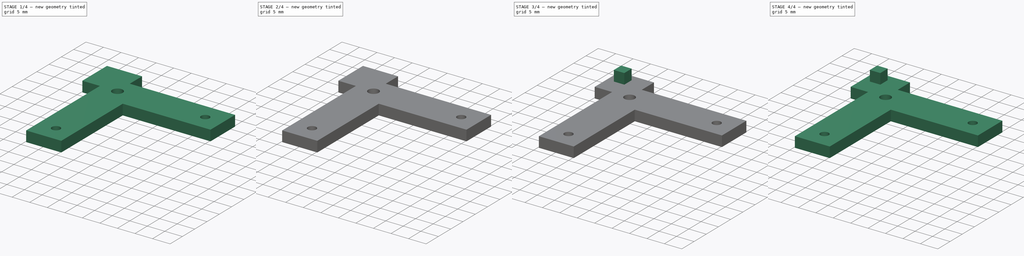
[diagram: build sequence overview — one tinted view per stage of 4, left to right]
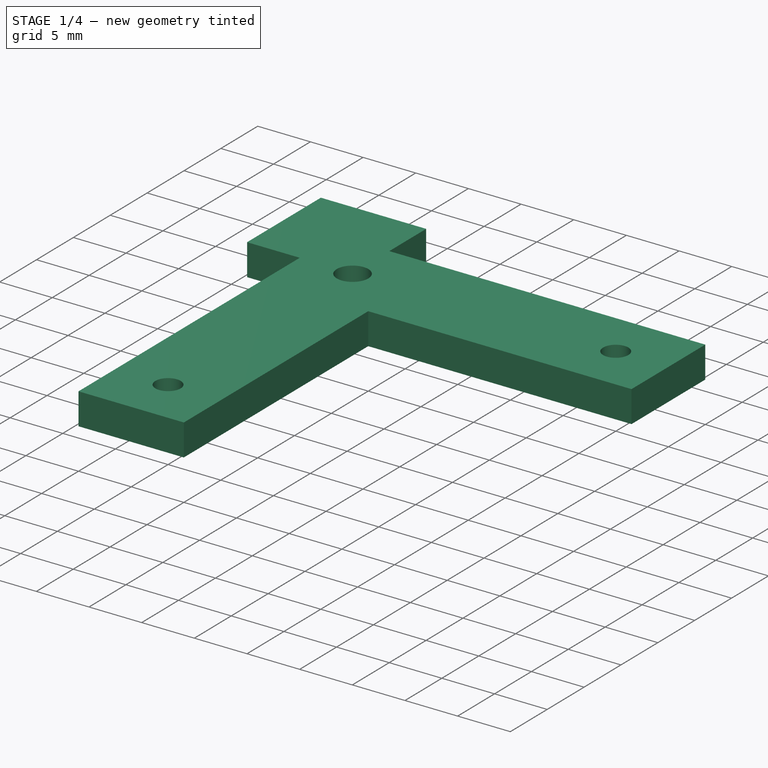
[diagram: stage 1 of 4 — iso view after this stage's code; geometry added in this stage tinted green]
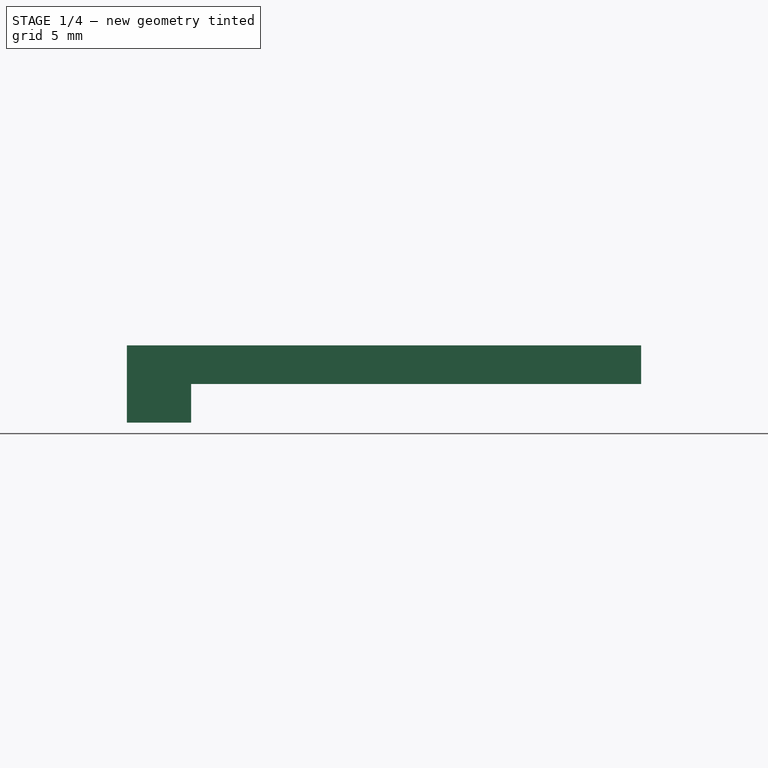
[diagram: stage 1 of 4 — front view after this stage's code; geometry added in this stage tinted green]
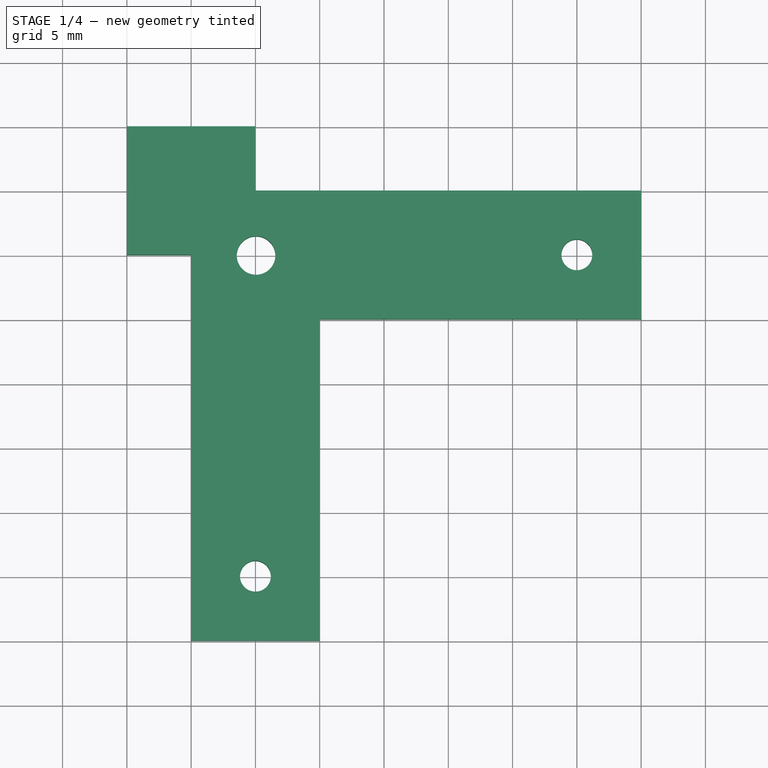
[diagram: stage 1 of 4 — top view after this stage's code; geometry added in this stage tinted green]
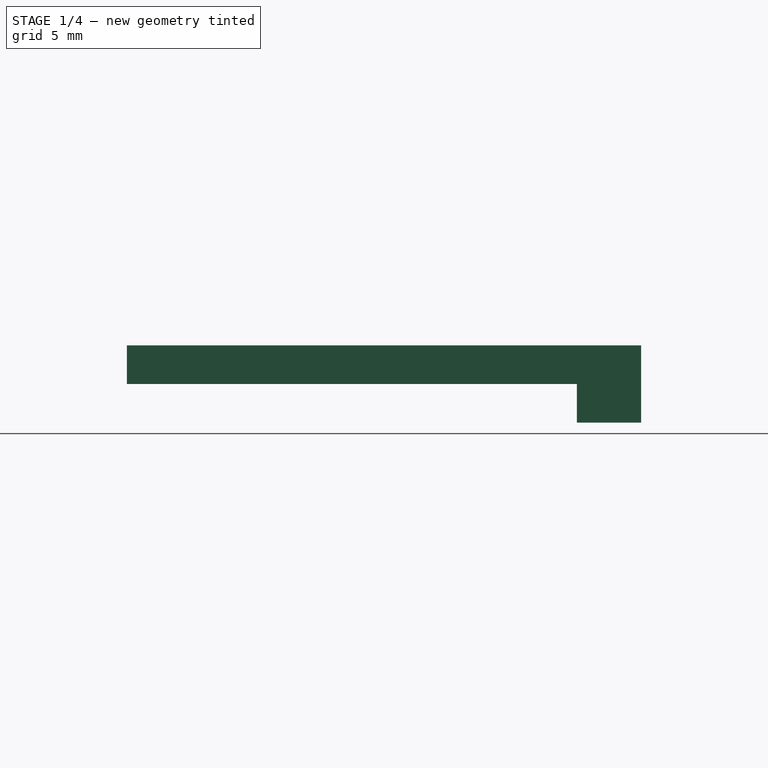
[diagram: stage 1 of 4 — right view after this stage's code; geometry added in this stage tinted green]
FCSTD DOCUMENT  (FreeCAD 0.18R4 (GitTag))
Label: болансир опорных катков
License: All rights reserved
LicenseURL: http://en.wikipedia.org/wiki/All_rights_reserved
objects: Sketcher::SketchObject×3, Part::Box×3, Part::MultiFuse×3, PartDesign::Pad×3, PartDesign::Body×2, App::MeasureDistance×1
note: 17 computed .brp shape members not serialized (recipe doc carries the construction recipe); baked Part::Feature solids carry a one-line shape summary decoded from their .brp

FEATURE [Sketcher::SketchObject] Sketch001
  MapMode = 5
  Support = -> [XY_Plane001]
  sketch-geometry (23):
    g0: LineSegment StartX=25 StartY=10 StartZ=0 EndX=-5 EndY=10 EndZ=0
    g1: LineSegment StartX=-5 StartY=10 StartZ=0 EndX=-5 EndY=15 EndZ=0
    g2: LineSegment StartX=-5 StartY=15 StartZ=0 EndX=-15 EndY=15 EndZ=0
    g3: LineSegment StartX=-15 StartY=15 StartZ=0 EndX=-15 EndY=5 EndZ=0
    g4: LineSegment StartX=-15 StartY=5 StartZ=0 EndX=-10 EndY=5 EndZ=0
    g5: LineSegment StartX=-10 StartY=5 StartZ=0 EndX=-10 EndY=-25 EndZ=0
    g6: LineSegment StartX=-10 StartY=-25 StartZ=0 EndX=0 EndY=-25 EndZ=0
    g7: LineSegment StartX=0 StartY=-25 StartZ=0 EndX=0 EndY=0 EndZ=0
    g8: LineSegment StartX=0 StartY=0 StartZ=0 EndX=25 EndY=0 EndZ=0
    g9: LineSegment StartX=25 StartY=0 StartZ=0 EndX=25 EndY=10 EndZ=0
    g10: LineSegment [constr] StartX=0 StartY=0 StartZ=0 EndX=-15 EndY=15 EndZ=0
    g11: LineSegment [constr] StartX=0 StartY=0 StartZ=0 EndX=-4.94975 EndY=4.94975 EndZ=0
    g12: Circle CenterX=-4.94975 CenterY=4.94975 CenterZ=0 NormalX=0 NormalY=0 NormalZ=1 AngleXU=0 Radius=1.5
    g13: LineSegment [constr] StartX=20 StartY=5 StartZ=0 EndX=25 EndY=5 EndZ=0
    g14: LineSegment [constr] StartX=25 StartY=5 StartZ=0 EndX=25 EndY=0 EndZ=0
    g15: LineSegment [constr] StartX=25 StartY=0 StartZ=0 EndX=20 EndY=0 EndZ=0
    g16: LineSegment [constr] StartX=20 StartY=0 StartZ=0 EndX=20 EndY=5 EndZ=0
    g17: LineSegment [constr] StartX=-5 StartY=-25 StartZ=0 EndX=-10 EndY=-25 EndZ=0
    g18: LineSegment [constr] StartX=-10 StartY=-25 StartZ=0 EndX=-10 EndY=-20 EndZ=0
    g19: LineSegment [constr] StartX=-10 StartY=-20 StartZ=0 EndX=-5 EndY=-20 EndZ=0
    g20: LineSegment [constr] StartX=-5 StartY=-20 StartZ=0 EndX=-5 EndY=-25 EndZ=0
    g21: Circle CenterX=20 CenterY=5 CenterZ=0 NormalX=0 NormalY=0 NormalZ=1 AngleXU=0 Radius=1.2
    g22: Circle CenterX=-5 CenterY=-20 CenterZ=0 NormalX=0 NormalY=0 NormalZ=1 AngleXU=0 Radius=1.2
  constraints (62):
    c: Coincident(g0,g1)
    c: Coincident(g1,g2)
    c: Coincident(g2,g3)
    c: Coincident(g3,g4)
    c: Coincident(g4,g5)
    c: Coincident(g5,g6)
    c: Coincident(g6,g7)
    c: Coincident(g7,g8)
    c: Coincident(g8,g9)
    c: Coincident(g0,g9)
    c: Parallel(g5,g7)
    c: Parallel(g7,g3)
    c: Parallel(g3,g9)
    c: Parallel(g9,g1)
    c: Parallel(g4,g2)
    c: Parallel(g2,g0)
    c: Parallel(g0,g8)
    c: Parallel(g8,g6)
    c: Perpendicular(g9,g8)
    c: Distance(g9) = 10
    c: Distance(g6) = 10
    c: Distance(g2) = 10
    c: Distance(g3) = 10
    c: Distance(g4) = 5
    c: Distance(g1) = 5
    c: Distance(g5) = 30
    c: Distance(g0) = 30
    c: Coincident(g7,g-1)
    c: Parallel(g8,g-1)
    c: Coincident(g2,g10)
    c: Coincident(g7,g10)
    c: Coincident(g11,g7)
    c: Distance(g11) = 7
    c: PointOnObject(g11,g10)
    c: Radius(g12) = 1.5
    c: Coincident(g12,g11)
    c: Coincident(g13,g14)
    c: Coincident(g14,g15)
    c: Coincident(g15,g16)
    c: Coincident(g16,g13)
    c: Horizontal(g13)
    c: Horizontal(g15)
    c: Vertical(g14)
    c: Vertical(g16)
    c: Coincident(g17,g18)
    c: Coincident(g18,g19)
    c: Coincident(g19,g20)
    c: Coincident(g20,g17)
    c: Horizontal(g17)
    c: Horizontal(g19)
    c: Vertical(g18)
    c: Vertical(g20)
    c: Coincident(g8,g14)
    c: Coincident(g5,g17)
    c: Distance(g19) = 5
    c: Distance(g20) = 5
    c: Distance(g13) = 5
    c: Distance(g16) = 5
    c: Radius(g21) = 1.2
    c: Radius(g22) = 1.2
    c: Coincident(g21,g13)
    c: Coincident(g22,g19)
FEATURE [PartDesign::Pad] Pad001
  Length = 3
  Length2 = 100
  Profile = -> Sketch001
  Type = 0
FEATURE [Sketcher::SketchObject] Sketch002
  ExternalGeometry = -> [Pad001]
  MapMode = 5
  Placement = pos=(0,0,0) rot=(1,0,0;3.14159rad)
  Support = -> [Pad001]
  sketch-geometry (4):
    g0: LineSegment StartX=-15 StartY=-15 StartZ=0 EndX=-10 EndY=-15 EndZ=0
    g1: LineSegment StartX=-10 StartY=-15 StartZ=0 EndX=-10 EndY=-10 EndZ=0
    g2: LineSegment StartX=-10 StartY=-10 StartZ=0 EndX=-15 EndY=-10 EndZ=0
    g3: LineSegment StartX=-15 StartY=-10 StartZ=0 EndX=-15 EndY=-15 EndZ=0
  constraints (11):
    c: Coincident(g0,g1)
    c: Coincident(g1,g2)
    c: Coincident(g2,g3)
    c: Coincident(g3,g0)
    c: Horizontal(g0)
    c: Horizontal(g2)
    c: Vertical(g1)
    c: Vertical(g3)
    c: Coincident(g0,g-5)
    c: Distance(g1) = 5
    c: Distance(g2) = 5
FEATURE [PartDesign::Pad] Pad002
  BaseFeature = -> Pad001
  Length = 3
  Length2 = 100
  Profile = -> Sketch002
  Type = 0
FEATURE [PartDesign::Body] Body001
  Group = -> [Sketch001,Pad001,Sketch002,Pad002]
  Origin = -> Origin001
  Tip = -> Pad002
FEATURE [App::MeasureDistance] Distance  label="Distance: 25,00 mm"
  Distance = 25
  P1 = (0,0,3)
  P2 = (0,-25,3)
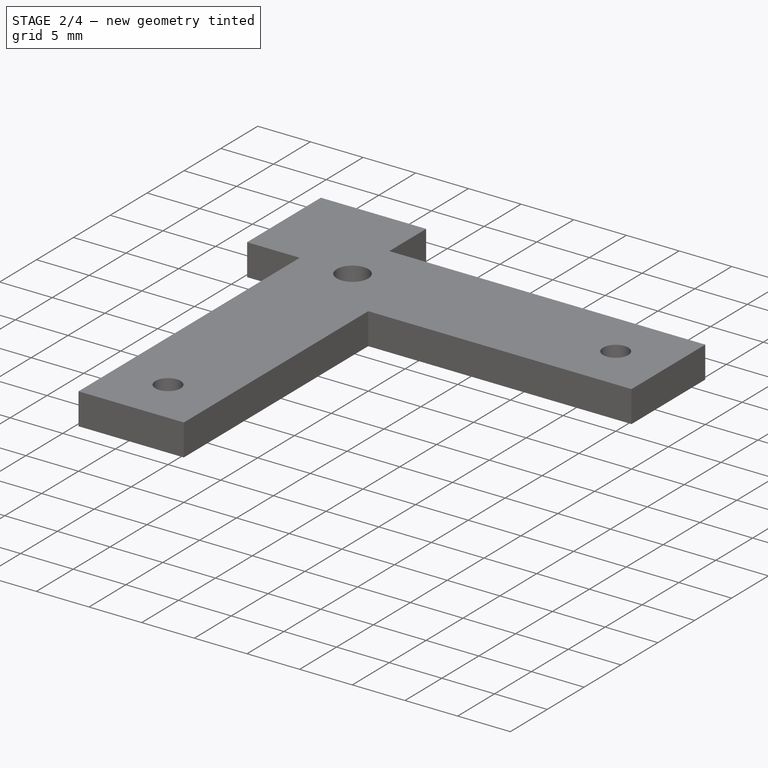
[diagram: stage 2 of 4 — iso view after this stage's code; geometry added in this stage tinted green]
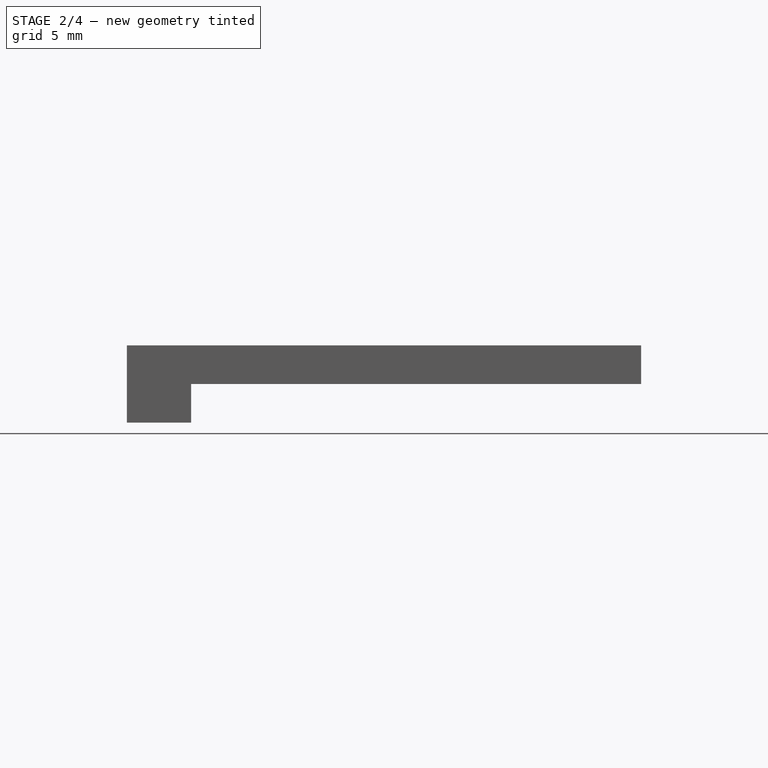
[diagram: stage 2 of 4 — front view after this stage's code; geometry added in this stage tinted green]
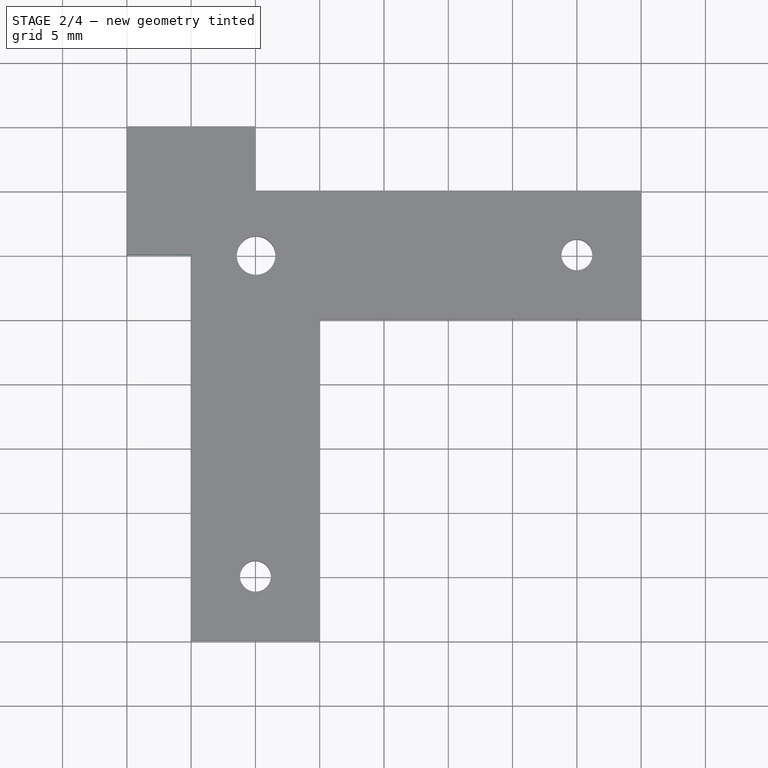
[diagram: stage 2 of 4 — top view after this stage's code; geometry added in this stage tinted green]
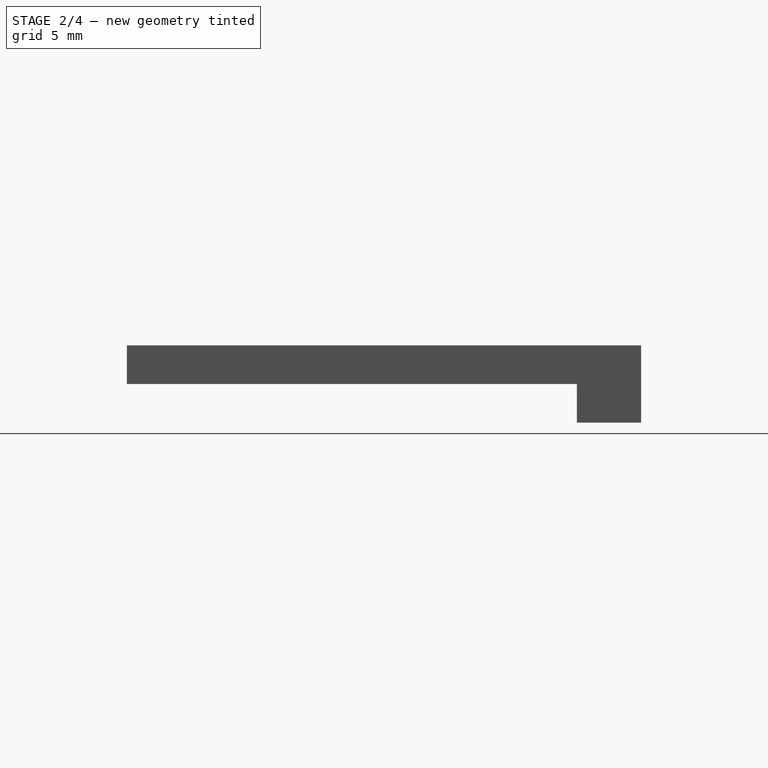
[diagram: stage 2 of 4 — right view after this stage's code; geometry added in this stage tinted green]
FEATURE [PartDesign::Pad] Pad
  Length = 3
  Length2 = 100
  Profile = -> Sketch
  Type = 0
FEATURE [Part::Box] Box002  label="Куб002"
  AttacherType = Attacher::AttachEngine3D
  Height = 3
  Length = 8
  Placement = pos=(-8,5,0) rot=(0,0,1;1.5708rad)
  Width = 5
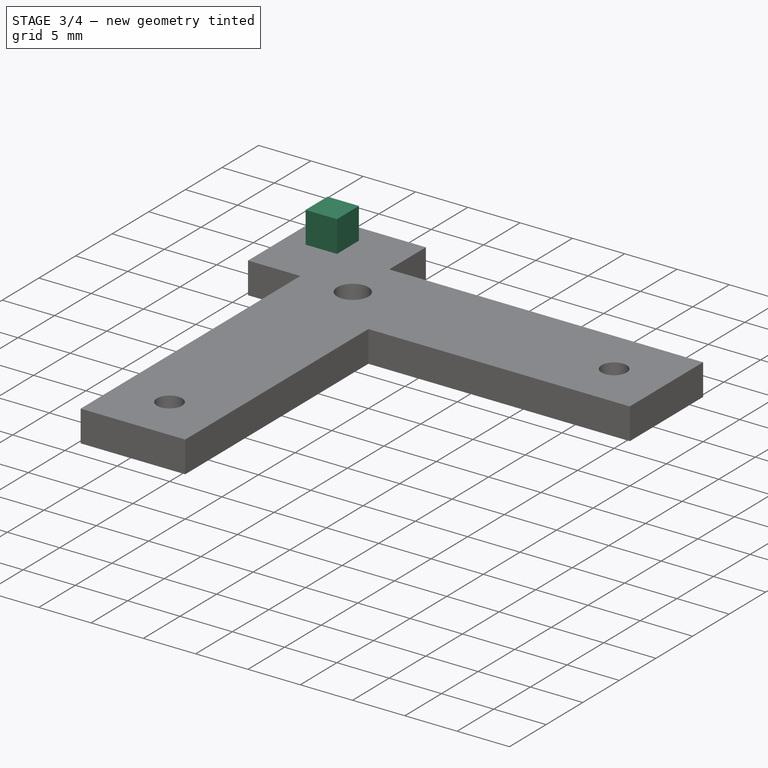
[diagram: stage 3 of 4 — iso view after this stage's code; geometry added in this stage tinted green]
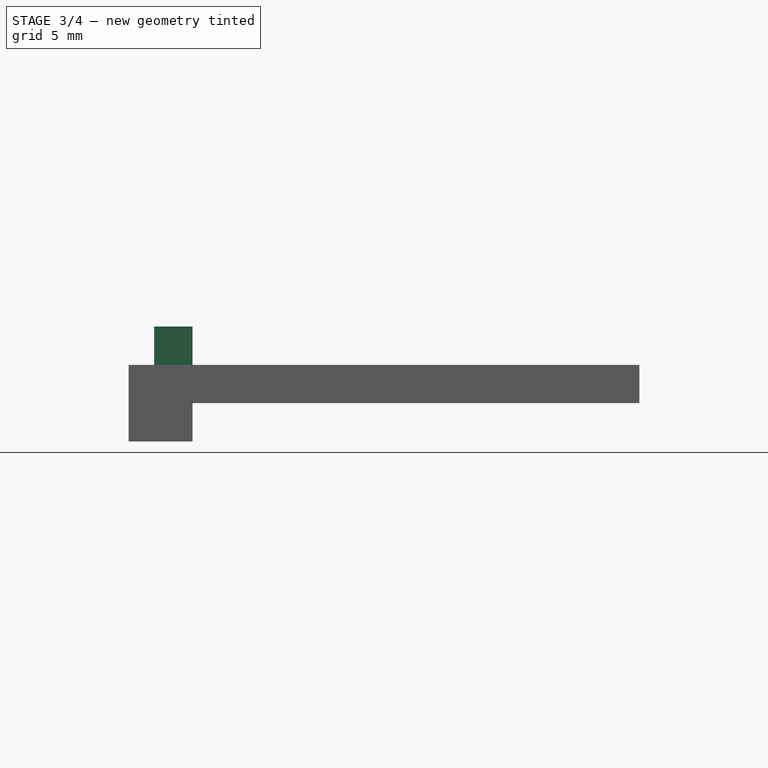
[diagram: stage 3 of 4 — front view after this stage's code; geometry added in this stage tinted green]
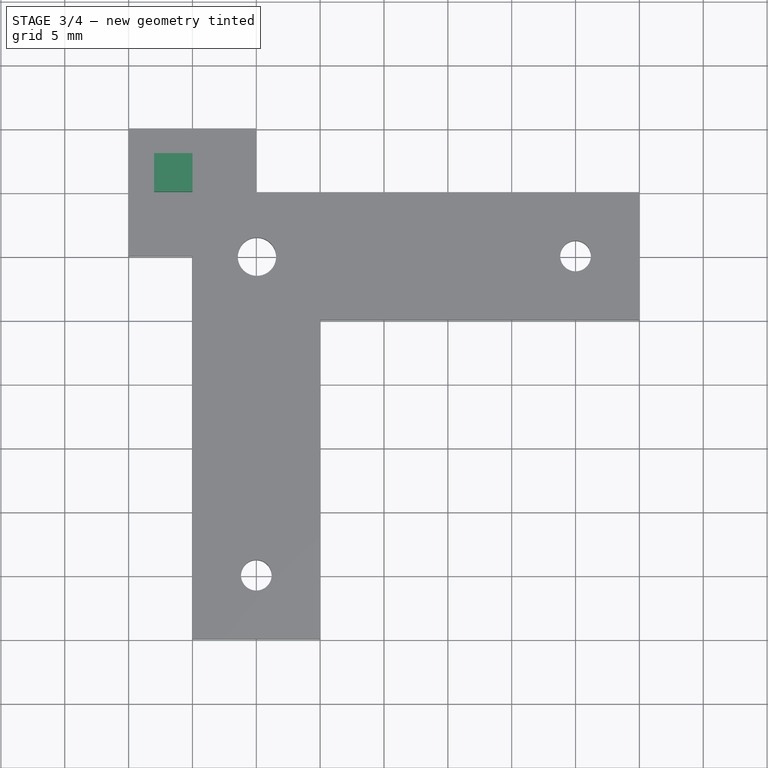
[diagram: stage 3 of 4 — top view after this stage's code; geometry added in this stage tinted green]
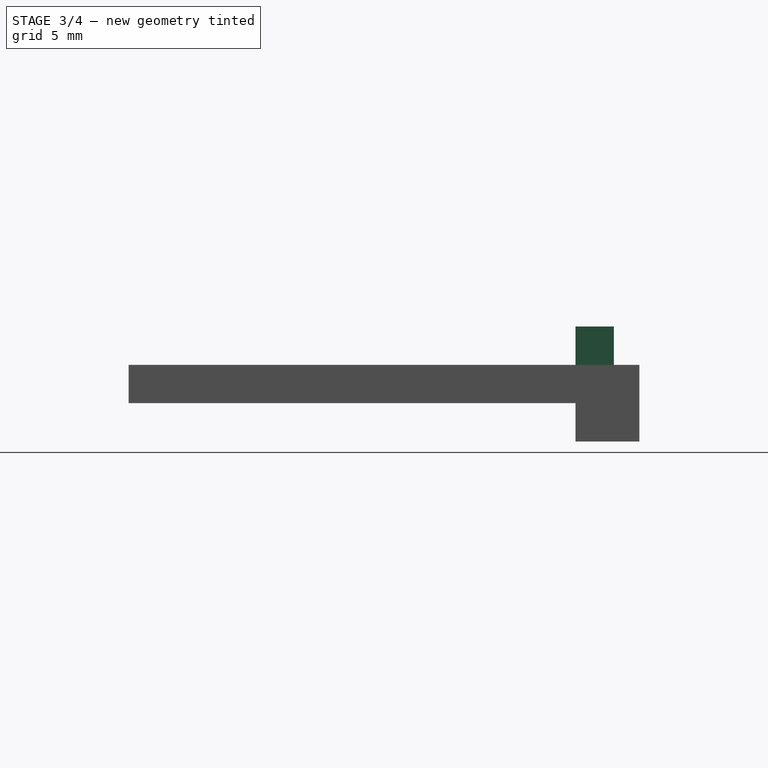
[diagram: stage 3 of 4 — right view after this stage's code; geometry added in this stage tinted green]
FEATURE [Sketcher::SketchObject] Sketch
  MapMode = 5
  Support = -> [XY_Plane]
  sketch-geometry (21):
    g0: LineSegment StartX=0 StartY=0 StartZ=0 EndX=0 EndY=-25 EndZ=0
    g1: LineSegment StartX=0 StartY=-25 StartZ=0 EndX=-10 EndY=-25 EndZ=0
    g2: LineSegment StartX=-10 StartY=-25 StartZ=0 EndX=-10 EndY=10 EndZ=0
    g3: LineSegment StartX=-10 StartY=10 StartZ=0 EndX=25 EndY=10 EndZ=0
    g4: LineSegment StartX=25 StartY=10 StartZ=0 EndX=25 EndY=0 EndZ=0
    g5: LineSegment StartX=25 StartY=0 StartZ=0 EndX=0 EndY=0 EndZ=0
    g6: Circle CenterX=-5 CenterY=5 CenterZ=0 NormalX=0 NormalY=0 NormalZ=1 AngleXU=0 Radius=3
    g7: LineSegment [constr] StartX=0 StartY=0 StartZ=0 EndX=-5 EndY=0 EndZ=0
    g8: LineSegment [constr] StartX=0 StartY=5 StartZ=0 EndX=0 EndY=0 EndZ=0
    g9: LineSegment [constr] StartX=-5 StartY=5 StartZ=0 EndX=0 EndY=5 EndZ=0
    g10: LineSegment [constr] StartX=-5 StartY=5 StartZ=0 EndX=-5 EndY=0 EndZ=0
    g11: LineSegment [constr] StartX=25 StartY=0 StartZ=0 EndX=20 EndY=0 EndZ=0
    g12: LineSegment [constr] StartX=20 StartY=0 StartZ=0 EndX=20 EndY=5 EndZ=0
    g13: LineSegment [constr] StartX=20 StartY=5 StartZ=0 EndX=25 EndY=5 EndZ=0
    g14: LineSegment [constr] StartX=25 StartY=5 StartZ=0 EndX=25 EndY=0 EndZ=0
    g15: LineSegment [constr] StartX=-10 StartY=-25 StartZ=0 EndX=-5 EndY=-25 EndZ=0
    g16: LineSegment [constr] StartX=-5 StartY=-25 StartZ=0 EndX=-5 EndY=-20 EndZ=0
    g17: LineSegment [constr] StartX=-5 StartY=-20 StartZ=0 EndX=-10 EndY=-20 EndZ=0
    g18: LineSegment [constr] StartX=-10 StartY=-20 StartZ=0 EndX=-10 EndY=-25 EndZ=0
    g19: Circle CenterX=20 CenterY=5 CenterZ=0 NormalX=0 NormalY=0 NormalZ=1 AngleXU=0 Radius=2.2
    g20: Circle CenterX=-5 CenterY=-20 CenterZ=0 NormalX=0 NormalY=0 NormalZ=1 AngleXU=0 Radius=2.2
  constraints (56):
    c: Coincident(g0,g1)
    c: Coincident(g1,g2)
    c: Horizontal(g1)
    c: Vertical(g0)
    c: Vertical(g2)
    c: Coincident(g3,g4)
    c: Coincident(g4,g5)
    c: Horizontal(g3)
    c: Horizontal(g5)
    c: Vertical(g4)
    c: Coincident(g0,g5)
    c: Coincident(g2,g3)
    c: Distance(g1) = 10
    c: Distance(g4) = 10
    c: Distance(g0) = 25
    c: Distance(g5) = 25
    c: Coincident(g0,g-1)
    c: Coincident(g0,g7)
    c: Coincident(g0,g8)
    c: Perpendicular(g5,g8)
    c: Distance(g8) = 5
    c: Parallel(g7,g5)
    c: Distance(g7) = 5
    c: Coincident(g6,g9)
    c: Coincident(g6,g10)
    c: Coincident(g8,g9)
    c: Coincident(g7,g10)
    c: Equal(g9,g7)
    c: Equal(g8,g10)
    c: Radius(g6) = 3
    c: Coincident(g11,g12)
    c: Coincident(g12,g13)
    c: Coincident(g13,g14)
    c: Coincident(g14,g11)
    c: Horizontal(g11)
    c: Horizontal(g13)
    c: Vertical(g12)
    c: Vertical(g14)
    c: Coincident(g4,g11)
    c: Coincident(g15,g16)
    c: Coincident(g16,g17)
    c: Coincident(g17,g18)
    c: Coincident(g18,g15)
    c: Horizontal(g15)
    c: Horizontal(g17)
    c: Vertical(g16)
    c: Vertical(g18)
    c: Coincident(g1,g15)
    c: Distance(g17) = 5
    c: Distance(g16) = 5
    c: Distance(g12) = 5
    c: Distance(g13) = 5
    c: Coincident(g12,g19)
    c: Radius(g19) = 2.2
    c: Coincident(g16,g20)
    c: Radius(g20) = 2.2
FEATURE [Part::Box] Box  label="Куб"
  AttacherType = Attacher::AttachEngine3D
  Height = 6
  Length = 3
  Placement = pos=(-13,10,0) rot=(0,0,1;0rad)
  Width = 3
FEATURE [Part::Box] Box001  label="Куб001"
  AttacherType = Attacher::AttachEngine3D
  Height = 3
  Length = 8
  Placement = pos=(-13,8,0) rot=(0,0,1;0rad)
  Width = 5
FEATURE [Part::MultiFuse] Fusion
  Shapes = -> [Box001,Box]
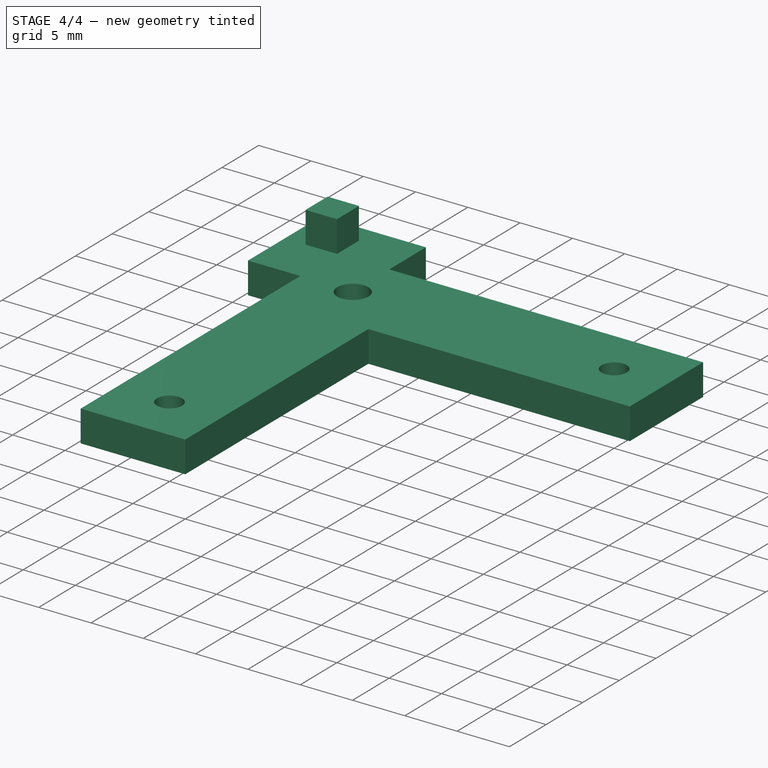
[diagram: stage 4 of 4 — iso view after this stage's code; geometry added in this stage tinted green]
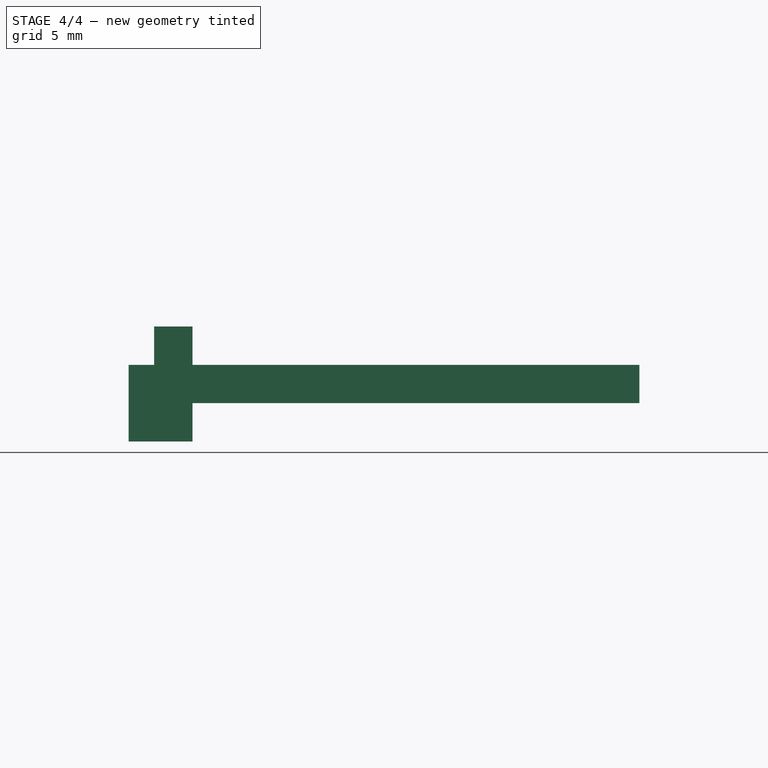
[diagram: stage 4 of 4 — front view after this stage's code; geometry added in this stage tinted green]
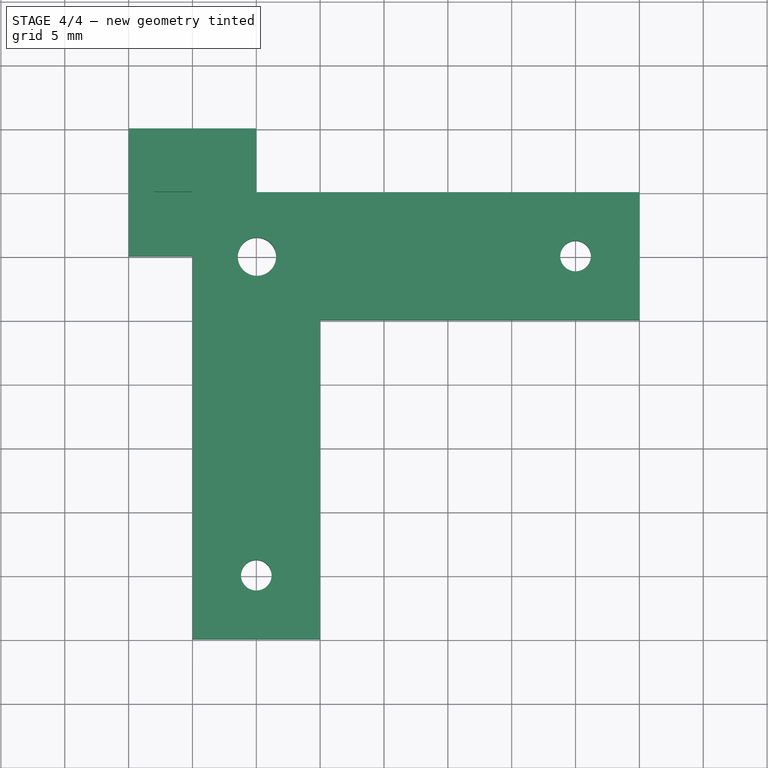
[diagram: stage 4 of 4 — top view after this stage's code; geometry added in this stage tinted green]
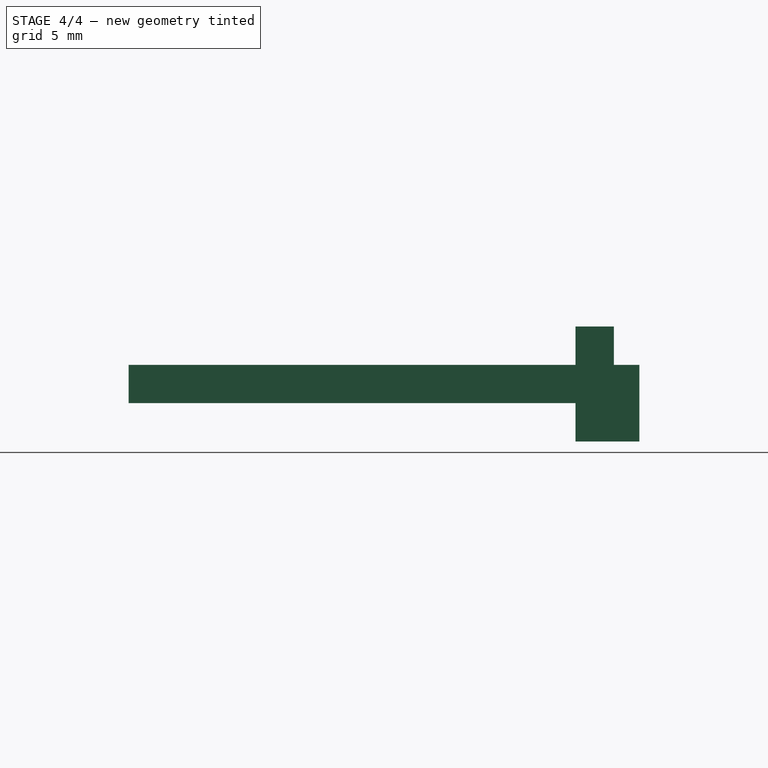
[diagram: stage 4 of 4 — right view after this stage's code; geometry added in this stage tinted green]
FEATURE [PartDesign::Body] Body
  Group = -> [Sketch,Pad]
  Origin = -> Origin
  Tip = -> Pad
FEATURE [Part::MultiFuse] Fusion001
  Shapes = -> [Fusion,Body]
FEATURE [Part::MultiFuse] Fusion002
  Shapes = -> [Fusion001,Box002]
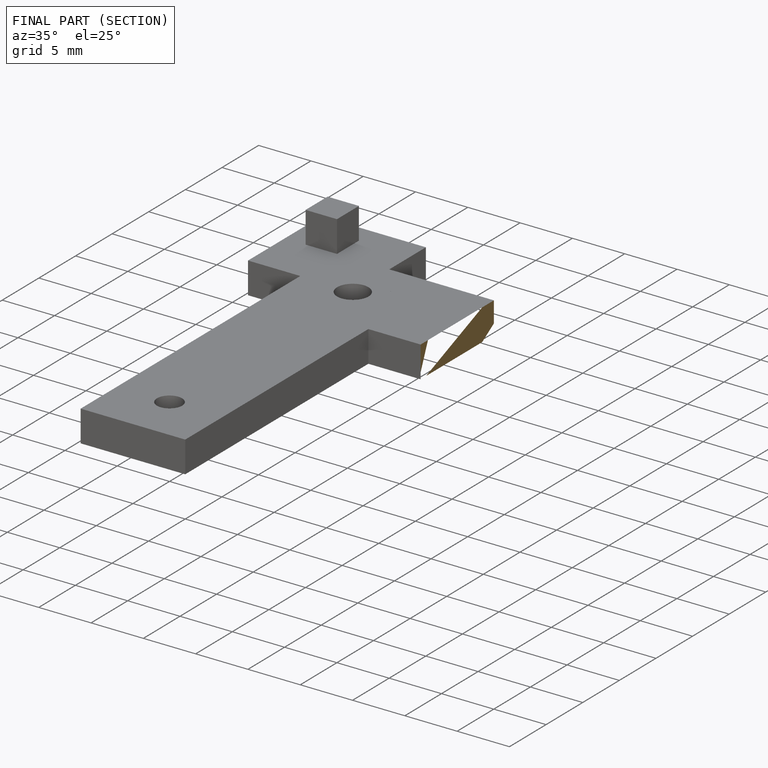
[diagram: finished part — half-section view (interior)]
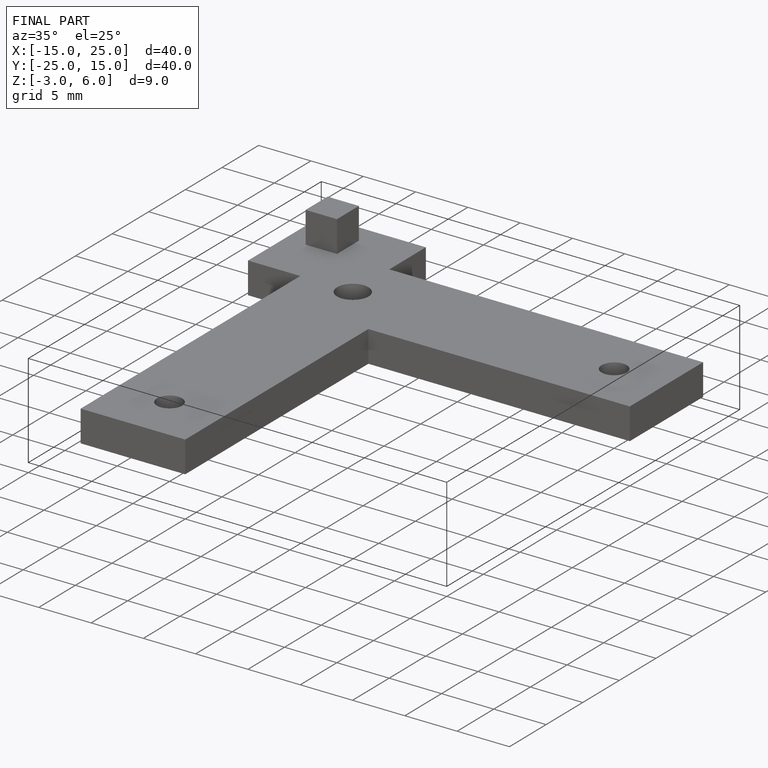
[diagram: finished part — iso view with bounding-box wireframe]
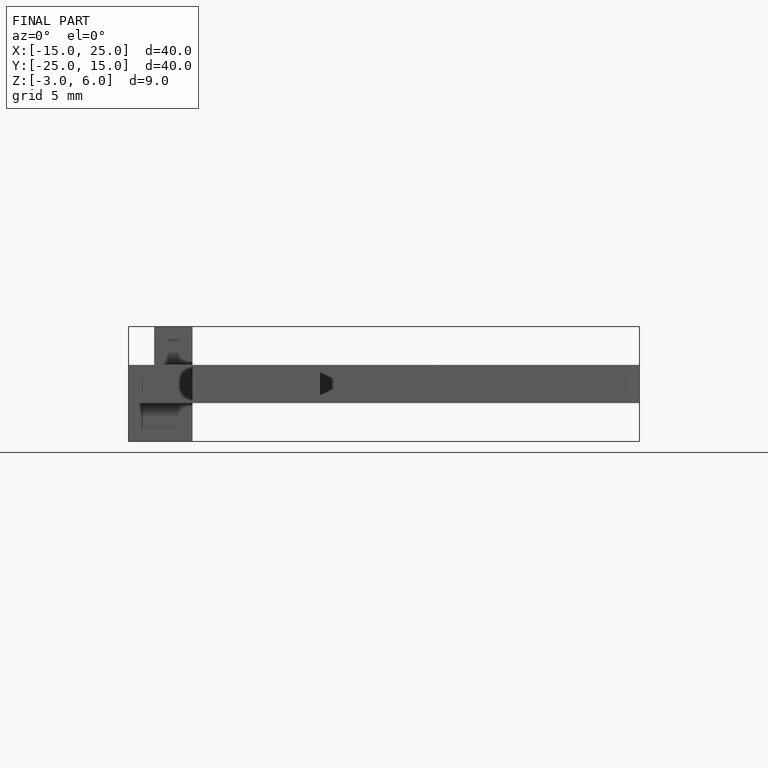
[diagram: finished part — front view with bounding-box wireframe]
